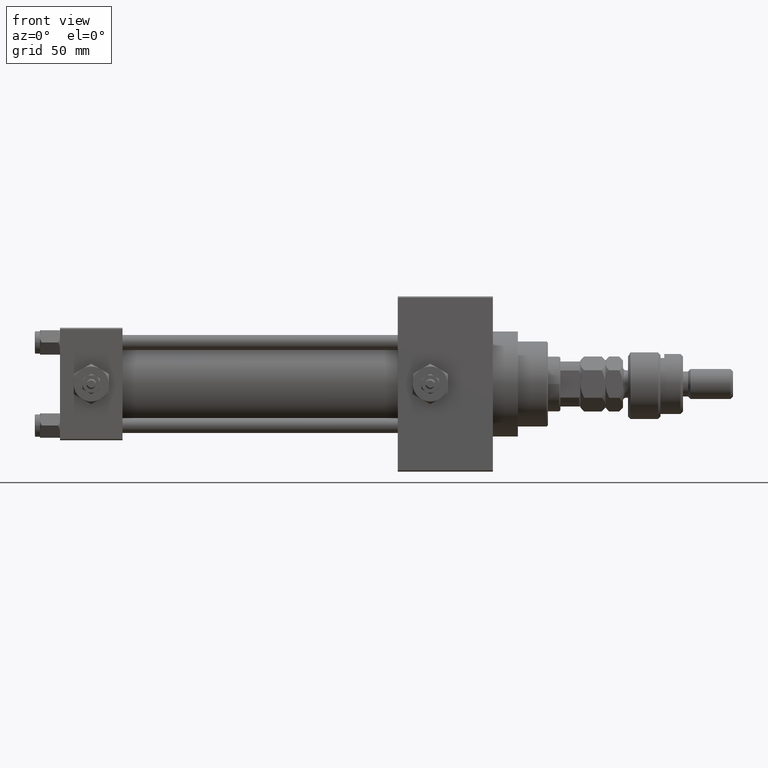
[diagram: clean part render]
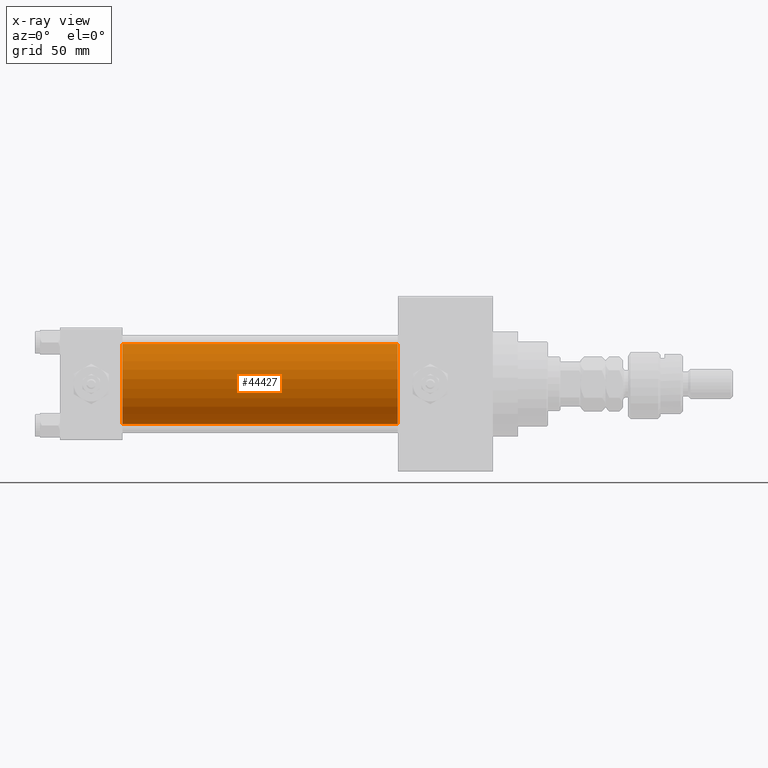
[diagram: x-ray — body ghosted, one internal face saturated and labeled with its STEP entity id]
A machine part, front view, then the same camera in x-ray: the body is ghosted and one INTERNAL B-rep face — a face not visible from any outside direction — is saturated and labeled: STEP entity #44427.
In plain terms, the highlighted cylindrical surface (partial cylindrical patch) has radius 16 mm, axis along (-1, -0, -0).
Its self-contained STEP definition (entity closure, byte-faithful):
#1580 = EDGE_CURVE ( 'NONE', #36617, #50435, #21915, .T. ) ;
#4026 = DIRECTION ( 'NONE',  ( 0.000000000000000000, 0.000000000000000000, 1.000000000000000000 ) ) ;
#4720 = DIRECTION ( 'NONE',  ( 1.000000000000000000, 0.000000000000000000, 0.000000000000000000 ) ) ;
#6664 = CARTESIAN_POINT ( 'NONE',  ( 135.0000000000000000, -6.426503353294456087E-16, -16.00000000000000000 ) ) ;
#7152 = EDGE_CURVE ( 'NONE', #27141, #36617, #32384, .T. ) ;
#8163 = DIRECTION ( 'NONE',  ( 0.000000000000000000, 0.000000000000000000, -1.000000000000000000 ) ) ;
#8655 = EDGE_LOOP ( 'NONE', ( #45263, #44623, #41836, #42598 ) ) ;
#9728 = AXIS2_PLACEMENT_3D ( 'NONE', #48793, #12821, #40400 ) ;
#9779 = EDGE_CURVE ( 'NONE', #27141, #22226, #48633, .T. ) ;
#12821 = DIRECTION ( 'NONE',  ( 1.000000000000000000, 0.000000000000000000, 0.000000000000000000 ) ) ;
#15544 = VECTOR ( 'NONE', #41863, 1000.000000000000000 ) ;
#17209 = CIRCLE ( 'NONE', #40713, 16.00000000000000000 ) ;
#19321 = CARTESIAN_POINT ( 'NONE',  ( 25.00000000000000000, -6.426503353294456087E-16, -16.00000000000000000 ) ) ;
#19773 = CARTESIAN_POINT ( 'NONE',  ( 135.0000000000000000, -2.602085213965210642E-15, 16.00000000000000000 ) ) ;
#21915 = LINE ( 'NONE', #6664, #15544 ) ;
#22226 = VERTEX_POINT ( 'NONE', #47880 ) ;
#24019 = DIRECTION ( 'NONE',  ( -1.000000000000000000, -0.000000000000000000, -0.000000000000000000 ) ) ;
#24516 = FACE_OUTER_BOUND ( 'NONE', #8655, .T. ) ;
#26677 = VECTOR ( 'NONE', #36560, 1000.000000000000000 ) ;
#27141 = VERTEX_POINT ( 'NONE', #19773 ) ;
#27945 = CYLINDRICAL_SURFACE ( 'NONE', #39785, 16.00000000000000000 ) ;
#32107 = EDGE_CURVE ( 'NONE', #22226, #50435, #17209, .T. ) ;
#32384 = CIRCLE ( 'NONE', #9728, 16.00000000000000000 ) ;
#36560 = DIRECTION ( 'NONE',  ( -1.000000000000000000, -0.000000000000000000, -0.000000000000000000 ) ) ;
#36617 = VERTEX_POINT ( 'NONE', #46581 ) ;
#39785 = AXIS2_PLACEMENT_3D ( 'NONE', #43932, #24019, #4026 ) ;
#40400 = DIRECTION ( 'NONE',  ( 0.000000000000000000, 0.000000000000000000, -1.000000000000000000 ) ) ;
#40713 = AXIS2_PLACEMENT_3D ( 'NONE', #44639, #4720, #8163 ) ;
#41016 = CARTESIAN_POINT ( 'NONE',  ( 135.0000000000000000, -2.602085213965210642E-15, 16.00000000000000000 ) ) ;
#41836 = ORIENTED_EDGE ( 'NONE', *, *, #32107, .F. ) ;
#41863 = DIRECTION ( 'NONE',  ( -1.000000000000000000, -0.000000000000000000, -0.000000000000000000 ) ) ;
#42598 = ORIENTED_EDGE ( 'NONE', *, *, #9779, .F. ) ;
#43932 = CARTESIAN_POINT ( 'NONE',  ( 135.0000000000000000, -2.602085213965210642E-15, 0.000000000000000000 ) ) ;
#44427 = ADVANCED_FACE ( 'NONE', ( #24516 ), #27945, .F. ) ;
#44623 = ORIENTED_EDGE ( 'NONE', *, *, #1580, .T. ) ;
#44639 = CARTESIAN_POINT ( 'NONE',  ( 25.00000000000000000, -2.602085213965210642E-15, 0.000000000000000000 ) ) ;
#45263 = ORIENTED_EDGE ( 'NONE', *, *, #7152, .T. ) ;
#46581 = CARTESIAN_POINT ( 'NONE',  ( 135.0000000000000000, -6.426503353294456087E-16, -16.00000000000000000 ) ) ;
#47880 = CARTESIAN_POINT ( 'NONE',  ( 25.00000000000000000, -2.602085213965210642E-15, 16.00000000000000000 ) ) ;
#48633 = LINE ( 'NONE', #41016, #26677 ) ;
#48793 = CARTESIAN_POINT ( 'NONE',  ( 135.0000000000000000, -2.602085213965210642E-15, 0.000000000000000000 ) ) ;
#50435 = VERTEX_POINT ( 'NONE', #19321 ) ;